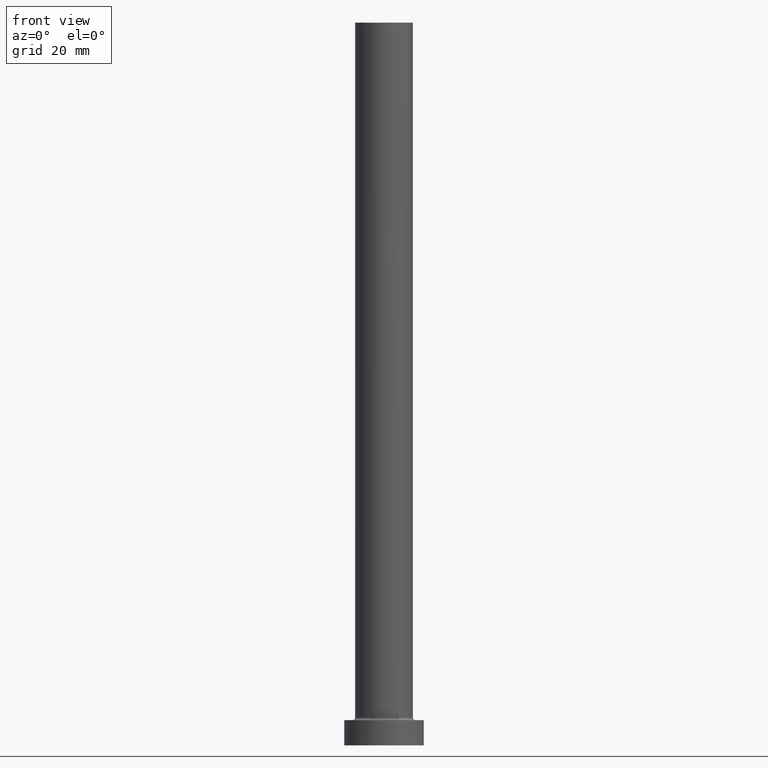
[diagram: clean part render]
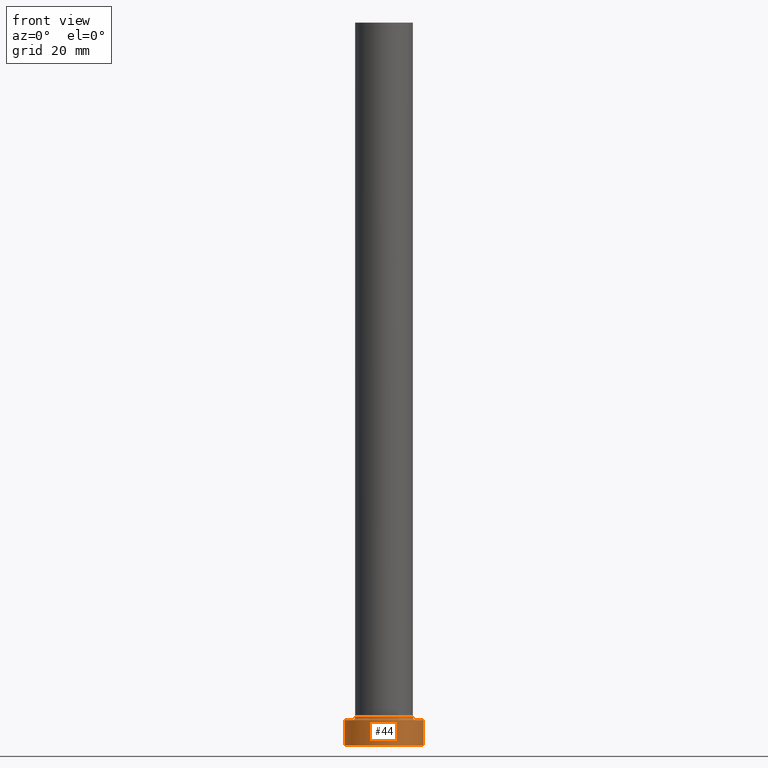
[diagram: same view with one face highlighted and labeled with its STEP entity id]
A machine part, front view. The second image highlights one B-rep face of the part: STEP entity #44.
In plain terms, the highlighted cylindrical surface (partial cylindrical patch) has radius 11 mm, axis along (-0, -0, -1).
Its self-contained STEP definition (entity closure, byte-faithful):
#15 = DIRECTION ( 'NONE',  ( 0.000000000000000000, 0.000000000000000000, 1.000000000000000000 ) ) ;
#22 = DIRECTION ( 'NONE',  ( -0.000000000000000000, -0.000000000000000000, -1.000000000000000000 ) ) ;
#44 = ADVANCED_FACE ( 'NONE', ( #208 ), #428, .T. ) ;
#48 = ORIENTED_EDGE ( 'NONE', *, *, #63, .F. ) ;
#53 = LINE ( 'NONE', #194, #304 ) ;
#62 = CARTESIAN_POINT ( 'NONE',  ( 0.000000000000000000, 0.000000000000000000, 7.000000000000000000 ) ) ;
#63 = EDGE_CURVE ( 'NONE', #282, #190, #438, .T. ) ;
#124 = CIRCLE ( 'NONE', #223, 11.00000000000000000 ) ;
#156 = CARTESIAN_POINT ( 'NONE',  ( -11.00000000000000000, 0.000000000000000000, 0.000000000000000000 ) ) ;
#160 = CARTESIAN_POINT ( 'NONE',  ( 0.000000000000000000, 0.000000000000000000, 0.000000000000000000 ) ) ;
#165 = EDGE_CURVE ( 'NONE', #282, #166, #53, .T. ) ;
#166 = VERTEX_POINT ( 'NONE', #156 ) ;
#169 = CARTESIAN_POINT ( 'NONE',  ( 11.00000000000000000, 1.347111479062088405E-15, 7.000000000000000000 ) ) ;
#176 = LINE ( 'NONE', #327, #368 ) ;
#184 = DIRECTION ( 'NONE',  ( 0.000000000000000000, 0.000000000000000000, 1.000000000000000000 ) ) ;
#190 = VERTEX_POINT ( 'NONE', #169 ) ;
#194 = CARTESIAN_POINT ( 'NONE',  ( -11.00000000000000000, 0.000000000000000000, 7.000000000000000000 ) ) ;
#208 = FACE_OUTER_BOUND ( 'NONE', #339, .T. ) ;
#223 = AXIS2_PLACEMENT_3D ( 'NONE', #160, #15, #411 ) ;
#237 = EDGE_CURVE ( 'NONE', #166, #341, #124, .T. ) ;
#249 = CARTESIAN_POINT ( 'NONE',  ( 0.000000000000000000, 0.000000000000000000, 7.000000000000000000 ) ) ;
#258 = AXIS2_PLACEMENT_3D ( 'NONE', #62, #362, #287 ) ;
#277 = ORIENTED_EDGE ( 'NONE', *, *, #165, .T. ) ;
#278 = CARTESIAN_POINT ( 'NONE',  ( -11.00000000000000000, 0.000000000000000000, 7.000000000000000000 ) ) ;
#282 = VERTEX_POINT ( 'NONE', #278 ) ;
#283 = CARTESIAN_POINT ( 'NONE',  ( 11.00000000000000000, 1.347111479062088405E-15, 0.000000000000000000 ) ) ;
#287 = DIRECTION ( 'NONE',  ( -1.000000000000000000, 0.000000000000000000, 0.000000000000000000 ) ) ;
#291 = DIRECTION ( 'NONE',  ( -0.000000000000000000, -0.000000000000000000, -1.000000000000000000 ) ) ;
#296 = AXIS2_PLACEMENT_3D ( 'NONE', #249, #184, #406 ) ;
#304 = VECTOR ( 'NONE', #22, 1000.000000000000000 ) ;
#327 = CARTESIAN_POINT ( 'NONE',  ( 11.00000000000000000, 1.347111479062088405E-15, 7.000000000000000000 ) ) ;
#339 = EDGE_LOOP ( 'NONE', ( #391, #48, #277, #455 ) ) ;
#341 = VERTEX_POINT ( 'NONE', #283 ) ;
#362 = DIRECTION ( 'NONE',  ( -0.000000000000000000, -0.000000000000000000, -1.000000000000000000 ) ) ;
#368 = VECTOR ( 'NONE', #291, 1000.000000000000000 ) ;
#391 = ORIENTED_EDGE ( 'NONE', *, *, #439, .F. ) ;
#406 = DIRECTION ( 'NONE',  ( 1.000000000000000000, 0.000000000000000000, 0.000000000000000000 ) ) ;
#411 = DIRECTION ( 'NONE',  ( 1.000000000000000000, 0.000000000000000000, 0.000000000000000000 ) ) ;
#428 = CYLINDRICAL_SURFACE ( 'NONE', #258, 11.00000000000000000 ) ;
#438 = CIRCLE ( 'NONE', #296, 11.00000000000000000 ) ;
#439 = EDGE_CURVE ( 'NONE', #190, #341, #176, .T. ) ;
#455 = ORIENTED_EDGE ( 'NONE', *, *, #237, .T. ) ;